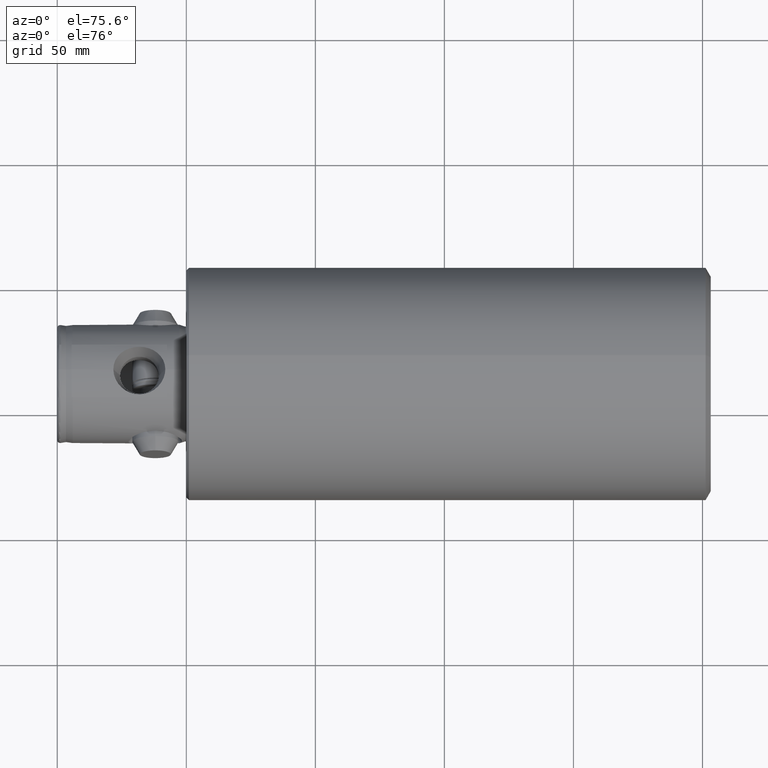
[diagram: clean part render]
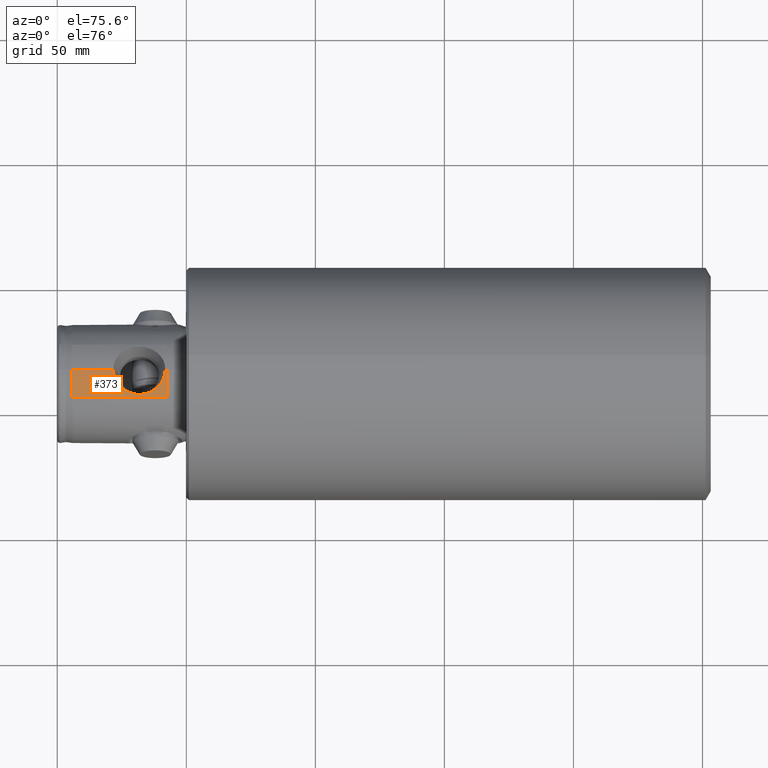
[diagram: same view with one face highlighted and labeled with its STEP entity id]
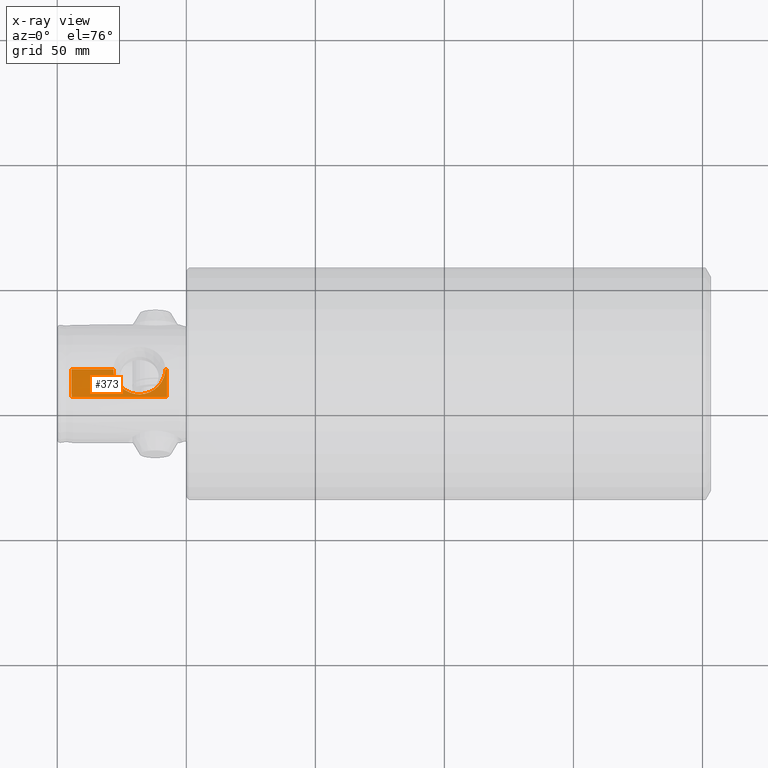
[diagram: x-ray of the same camera — body ghosted, the highlighted face saturated]
A machine part, auxiliary view. The second image highlights one B-rep face of the part: STEP entity #373.
The next image is the same camera in x-ray: the body ghosted, the highlighted face saturated — about 0% of this face is hidden behind the body in this view.
In plain terms, the highlighted cylindrical surface (partial cylindrical patch) has radius 23 mm, axis along (-1, 0, 0).
Its self-contained STEP definition (entity closure, byte-faithful):
#260 = EDGE_CURVE ( 'NONE', #375, #389, #1394, .T. ) ;
#263 = EDGE_CURVE ( 'NONE', #391, #389, #1431, .T. ) ;
#264 = ORIENTED_EDGE ( 'NONE', *, *, #260, .F. ) ;
#266 = ORIENTED_EDGE ( 'NONE', *, *, #263, .T. ) ;
#277 = EDGE_CURVE ( 'NONE', #323, #398, #1315, .T. ) ;
#278 = EDGE_CURVE ( 'NONE', #280, #398, #1452, .T. ) ;
#279 = ORIENTED_EDGE ( 'NONE', *, *, #278, .F. ) ;
#280 = VERTEX_POINT ( 'NONE', #1469 ) ;
#304 = ORIENTED_EDGE ( 'NONE', *, *, #322, .T. ) ;
#322 = EDGE_CURVE ( 'NONE', #375, #323, #1640, .T. ) ;
#323 = VERTEX_POINT ( 'NONE', #1635 ) ;
#324 = ORIENTED_EDGE ( 'NONE', *, *, #277, .T. ) ;
#373 = ADVANCED_FACE ( 'NONE', ( #1793 ), #1755, .T. ) ;
#374 = EDGE_LOOP ( 'NONE', ( #304, #324, #279, #394, #266, #264 ) ) ;
#375 = VERTEX_POINT ( 'NONE', #1823 ) ;
#389 = VERTEX_POINT ( 'NONE', #1790 ) ;
#390 = EDGE_CURVE ( 'NONE', #280, #391, #1776, .T. ) ;
#391 = VERTEX_POINT ( 'NONE', #1799 ) ;
#394 = ORIENTED_EDGE ( 'NONE', *, *, #390, .T. ) ;
#398 = VERTEX_POINT ( 'NONE', #1859 ) ;
#1309 = CARTESIAN_POINT ( 'NONE',  ( 42.50000000000000000, 0.0000000000000000000, 22.93000000000000000 ) ) ;
#1313 = DIRECTION ( 'NONE',  ( -1.000000000000000000, 0.0000000000000000000, 0.0000000000000000000 ) ) ;
#1314 = VECTOR ( 'NONE', #1313, 1000.000000000000000 ) ;
#1315 = LINE ( 'NONE', #1309, #1314 ) ;
#1376 = CARTESIAN_POINT ( 'NONE',  ( 5.557014176752583800, -10.49999999999999100, 20.39338192968113000 ) ) ;
#1377 = CARTESIAN_POINT ( 'NONE',  ( 5.538855646650372200, -8.870238849765906200, 21.22963138914300200 ) ) ;
#1378 = CARTESIAN_POINT ( 'NONE',  ( 5.525156729224059800, -7.168370762833353300, 21.86037261288042500 ) ) ;
#1379 = CARTESIAN_POINT ( 'NONE',  ( 5.513540485447443000, -4.952053985602630000, 22.39519719965759500 ) ) ;
#1380 = CARTESIAN_POINT ( 'NONE',  ( 5.511491858666889100, -4.502935528960202700, 22.48951595439582700 ) ) ;
#1381 = CARTESIAN_POINT ( 'NONE',  ( 5.507998335330698000, -3.604668019525830500, 22.65035556375866600 ) ) ;
#1382 = CARTESIAN_POINT ( 'NONE',  ( 5.506549167345434100, -3.155097331512935400, 22.71707309116323600 ) ) ;
#1394 = LINE ( 'NONE', #1404, #1430 ) ;
#1395 = CARTESIAN_POINT ( 'NONE',  ( 5.501924119433200900, -1.616015774491660200E-013, 22.93000000000000000 ) ) ;
#1404 = CARTESIAN_POINT ( 'NONE',  ( 42.50000000000000000, -10.49999999999999100, 20.39338192968113000 ) ) ;
#1407 = CARTESIAN_POINT ( 'NONE',  ( 5.503076247807878300, -1.805101285263363000, 22.87695984838262200 ) ) ;
#1408 = CARTESIAN_POINT ( 'NONE',  ( 5.501924119433202700, -0.9033963053425111400, 22.93000000000000000 ) ) ;
#1417 = DIRECTION ( 'NONE',  ( -1.000000000000000000, 0.0000000000000000000, 0.0000000000000000000 ) ) ;
#1430 = VECTOR ( 'NONE', #1417, 1000.000000000000000 ) ;
#1431 = B_SPLINE_CURVE_WITH_KNOTS ( 'NONE', 3,
 ( #1395, #1408, #1407, #1382, #1381, #1380, #1379, #1378, #1377, #1376 ),
 .UNSPECIFIED., .F., .F.,
 ( 4, 2, 2, 2, 4 ),
 ( 0.01084930892373658900, 0.01355812517696584500, 0.01491253330358047400, 0.01626694143019510200, 0.02168457393665361400 ),
 .UNSPECIFIED. ) ;
#1440 = CARTESIAN_POINT ( 'NONE',  ( 41.86605616819951300, -1.071864754969049800E-025, 22.93000000000000000 ) ) ;
#1441 = CARTESIAN_POINT ( 'NONE',  ( 41.86605616819949200, -0.6478599112093329500, 22.92999999999998900 ) ) ;
#1442 = CARTESIAN_POINT ( 'NONE',  ( 41.79690352782823500, -1.287976223939659900, 22.90267892973536600 ) ) ;
#1443 = CARTESIAN_POINT ( 'NONE',  ( 28.62506430335950800, -9.050318409090211300, 21.07602068679854000 ) ) ;
#1444 = CARTESIAN_POINT ( 'NONE',  ( 27.41729972274332300, -8.588708319993980200, 21.26767896436947000 ) ) ;
#1445 = CARTESIAN_POINT ( 'NONE',  ( 26.84676600271454200, -8.306670431762324100, 21.38047688167863200 ) ) ;
#1446 = CARTESIAN_POINT ( 'NONE',  ( 25.77276631306254400, -7.646823395247192700, 21.62446528668647300 ) ) ;
#1447 = CARTESIAN_POINT ( 'NONE',  ( 25.26825698576099200, -7.268646757831486800, 21.75590887133190400 ) ) ;
#1448 = CARTESIAN_POINT ( 'NONE',  ( 24.56199929504616000, -6.622540517458168600, 21.95709327242429200 ) ) ;
#1449 = CARTESIAN_POINT ( 'NONE',  ( 24.33625389111428900, -6.394770525249921200, 22.02450689476826200 ) ) ;
#1450 = CARTESIAN_POINT ( 'NONE',  ( 23.91138367157485000, -5.921482179003176000, 22.15602919545719700 ) ) ;
#1451 = CARTESIAN_POINT ( 'NONE',  ( 23.71111098244451700, -5.674943362420496100, 22.22046449384753300 ) ) ;
#1452 = B_SPLINE_CURVE_WITH_KNOTS ( 'NONE', 3,
 ( #1480, #1479, #1478, #1471, #1470, #1456, #1455, #1454, #1453, #1451, #1450, #1449, #1448, #1447, #1446, #1445, #1444, #1443, #1468, #1467, #1466, #1465, #1464, #1492, #1491, #1490, #1489, #1488, #1477, #1476, #1475, #1474, #1473, #1472, #1487, #1486, #1485, #1484, #1483, #1482, #1481, #1442, #1441, #1440 ),
 .UNSPECIFIED., .F., .F.,
 ( 4, 2, 2, 2, 2, 2, 2, 2, 2, 2, 2, 2, 2, 2, 2, 2, 2, 2, 2, 2, 2, 4 ),
 ( 0.05404717375600407600, 0.05597291713726768700, 0.05789866051853129900, 0.05886153220916309800, 0.05982440389979490300, 0.06078727559042670900, 0.06175014728105851500, 0.06367589066232212700, 0.06560163404358575200, 0.06752737742484936400, 0.06849024911548116900, 0.06945312080611297500, 0.07137886418737657300, 0.07330460756864017000, 0.07523035094990376800, 0.07619322264053556000, 0.07715609433116735200, 0.07908183771243092200, 0.08100758109369449200, 0.08197045278432628400, 0.08293332447495807600, 0.08485906785622164500 ),
 .UNSPECIFIED. ) ;
#1453 = CARTESIAN_POINT ( 'NONE',  ( 23.33511374058142000, -5.161459020443970800, 22.34493096796052200 ) ) ;
#1454 = CARTESIAN_POINT ( 'NONE',  ( 23.15938521358119900, -4.894517678252134000, 22.40496634416015800 ) ) ;
#1455 = CARTESIAN_POINT ( 'NONE',  ( 22.83357037808601900, -4.338908323378112700, 22.51880895565710700 ) ) ;
#1456 = CARTESIAN_POINT ( 'NONE',  ( 22.68494258437916900, -4.052470702352135100, 22.57210864255514300 ) ) ;
#1464 = CARTESIAN_POINT ( 'NONE',  ( 31.48372967610886500, -9.514334710821819000, 20.86985279545195500 ) ) ;
#1465 = CARTESIAN_POINT ( 'NONE',  ( 31.15553479535850200, -9.499534422683845800, 20.87659607244799500 ) ) ;
#1466 = CARTESIAN_POINT ( 'NONE',  ( 30.50971817104085600, -9.440721509407154600, 20.90316901786342600 ) ) ;
#1467 = CARTESIAN_POINT ( 'NONE',  ( 30.19040366082528900, -9.396816985203905400, 20.92294802973235300 ) ) ;
#1468 = CARTESIAN_POINT ( 'NONE',  ( 29.24289992671348800, -9.222636685099075700, 21.00033740367026900 ) ) ;
#1469 = CARTESIAN_POINT ( 'NONE',  ( 21.73394383180047000, 1.232694216850181700E-015, 22.93000000000000000 ) ) ;
#1470 = CARTESIAN_POINT ( 'NONE',  ( 22.28674404656212000, -3.176487190127411400, 22.71728459974394500 ) ) ;
#1471 = CARTESIAN_POINT ( 'NONE',  ( 22.08204706444821900, -2.566698502696064900, 22.79530253202506500 ) ) ;
#1472 = CARTESIAN_POINT ( 'NONE',  ( 39.28951137354517400, -6.389710373089447300, 22.02913801278785000 ) ) ;
#1473 = CARTESIAN_POINT ( 'NONE',  ( 38.59305098675804400, -7.030866803881701300, 21.83015951713884600 ) ) ;
#1474 = CARTESIAN_POINT ( 'NONE',  ( 38.35043649109631800, -7.233586905181319100, 21.76383352815482300 ) ) ;
#1475 = CARTESIAN_POINT ( 'NONE',  ( 37.84391228794292100, -7.617179609326500500, 21.63298691077449800 ) ) ;
#1476 = CARTESIAN_POINT ( 'NONE',  ( 37.57857031866439700, -7.798857865225429000, 21.56815557366617900 ) ) ;
#1477 = CARTESIAN_POINT ( 'NONE',  ( 36.76316464772255400, -8.301983814018601700, 21.38238698328113300 ) ) ;
#1478 = CARTESIAN_POINT ( 'NONE',  ( 21.80305157906439100, -1.290582254488930300, 22.90268809976692000 ) ) ;
#1479 = CARTESIAN_POINT ( 'NONE',  ( 21.73394383180048100, -0.6465372139289180500, 22.92999999999999600 ) ) ;
#1480 = CARTESIAN_POINT ( 'NONE',  ( 21.73394383180047000, 1.232694216850181700E-015, 22.93000000000000000 ) ) ;
#1481 = CARTESIAN_POINT ( 'NONE',  ( 41.59039702262876400, -2.236720239320952000, 22.82318233801380800 ) ) ;
#1482 = CARTESIAN_POINT ( 'NONE',  ( 41.50356628281681300, -2.552696000496455000, 22.78998294262287100 ) ) ;
#1483 = CARTESIAN_POINT ( 'NONE',  ( 41.29995906012423700, -3.164605398310266900, 22.71333491131060400 ) ) ;
#1484 = CARTESIAN_POINT ( 'NONE',  ( 41.18299712572189700, -3.462263981935367800, 22.66981170880043500 ) ) ;
#1485 = CARTESIAN_POINT ( 'NONE',  ( 40.78876879989481100, -4.331806081020408400, 22.52603261206824600 ) ) ;
#1486 = CARTESIAN_POINT ( 'NONE',  ( 40.46861263758286500, -4.880475636691277200, 22.41256067269331700 ) ) ;
#1487 = CARTESIAN_POINT ( 'NONE',  ( 39.71316922052493200, -5.917578909074864900, 22.16211273578256100 ) ) ;
#1488 = CARTESIAN_POINT ( 'NONE',  ( 36.19287573521376100, -8.583627092113314200, 21.26970657189442800 ) ) ;
#1489 = CARTESIAN_POINT ( 'NONE',  ( 34.99813022805730600, -9.042612731895191700, 21.07929988467662600 ) ) ;
#1490 = CARTESIAN_POINT ( 'NONE',  ( 34.36783927446386100, -9.220113688920950100, 21.00144765625940500 ) ) ;
#1491 = CARTESIAN_POINT ( 'NONE',  ( 33.10037172398005400, -9.454203311670092100, 20.89746151799768400 ) ) ;
#1492 = CARTESIAN_POINT ( 'NONE',  ( 32.45865258205263600, -9.513539598481793600, 20.87021405447188400 ) ) ;
#1635 = CARTESIAN_POINT ( 'NONE',  ( 42.50000000000000000, 0.0000000000000000000, 22.93000000000000000 ) ) ;
#1636 = DIRECTION ( 'NONE',  ( 0.0000000000000000000, 0.0000000000000000000, -1.000000000000000000 ) ) ;
#1637 = DIRECTION ( 'NONE',  ( -1.000000000000000000, -0.0000000000000000000, -0.0000000000000000000 ) ) ;
#1638 = CARTESIAN_POINT ( 'NONE',  ( 42.50000000000000000, 0.0000000000000000000, -0.06999999999999996500 ) ) ;
#1639 = AXIS2_PLACEMENT_3D ( 'NONE', #1638, #1637, #1636 ) ;
#1640 = CIRCLE ( 'NONE', #1639, 23.00000000000000000 ) ;
#1755 = CYLINDRICAL_SURFACE ( 'NONE', #1814, 23.00000000000000000 ) ;
#1775 = CARTESIAN_POINT ( 'NONE',  ( 42.50000000000000000, 0.0000000000000000000, 22.93000000000000000 ) ) ;
#1776 = LINE ( 'NONE', #1775, #1801 ) ;
#1788 = DIRECTION ( 'NONE',  ( -1.000000000000000000, 0.0000000000000000000, 0.0000000000000000000 ) ) ;
#1789 = CARTESIAN_POINT ( 'NONE',  ( 42.50000000000000000, 0.0000000000000000000, -0.06999999999999996500 ) ) ;
#1790 = CARTESIAN_POINT ( 'NONE',  ( 5.557014176752583800, -10.49999999999999100, 20.39338192968113000 ) ) ;
#1793 = FACE_OUTER_BOUND ( 'NONE', #374, .T. ) ;
#1799 = CARTESIAN_POINT ( 'NONE',  ( 5.501924119433200900, -1.616015774491660200E-013, 22.93000000000000000 ) ) ;
#1800 = DIRECTION ( 'NONE',  ( -1.000000000000000000, 0.0000000000000000000, 0.0000000000000000000 ) ) ;
#1801 = VECTOR ( 'NONE', #1800, 1000.000000000000000 ) ;
#1814 = AXIS2_PLACEMENT_3D ( 'NONE', #1789, #1788, #1822 ) ;
#1822 = DIRECTION ( 'NONE',  ( 0.0000000000000000000, 0.0000000000000000000, 1.000000000000000000 ) ) ;
#1823 = CARTESIAN_POINT ( 'NONE',  ( 42.50000000000000000, -10.49999999999999100, 20.39338192968113000 ) ) ;
#1859 = CARTESIAN_POINT ( 'NONE',  ( 41.86605616819951300, -1.071864754969049800E-025, 22.93000000000000000 ) ) ;